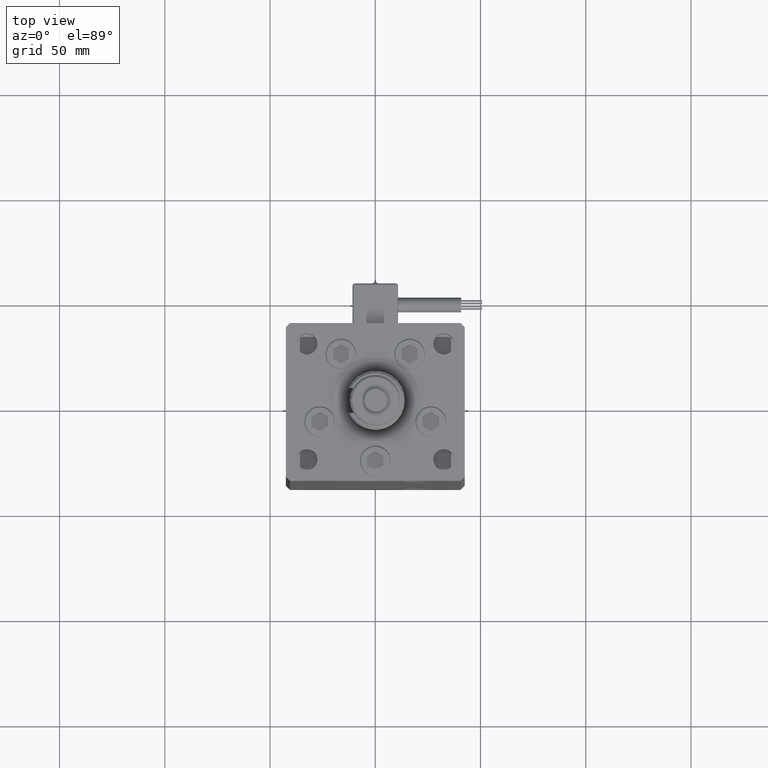
[diagram: clean part render]
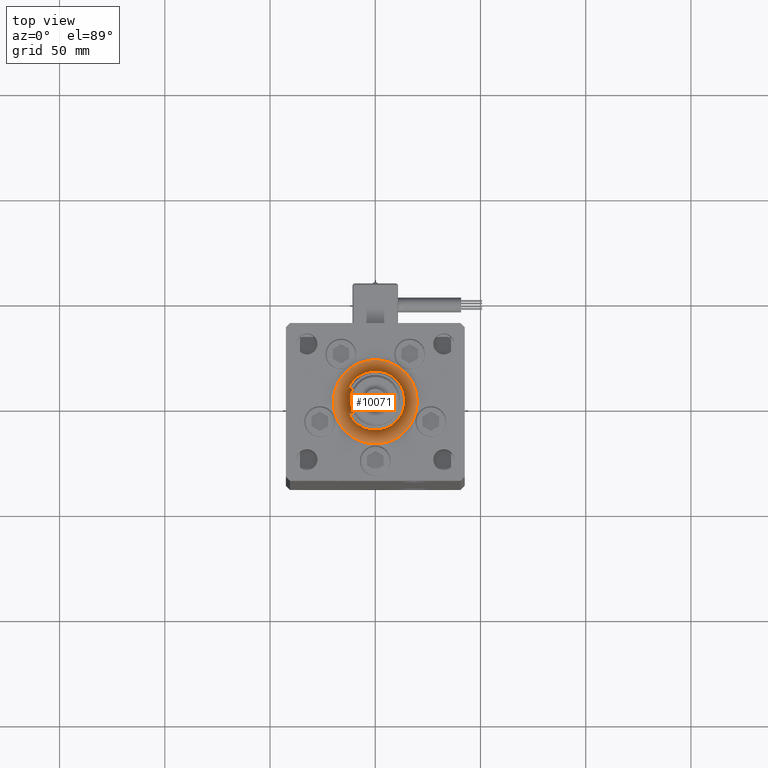
[diagram: same view with one face highlighted and labeled with its STEP entity id]
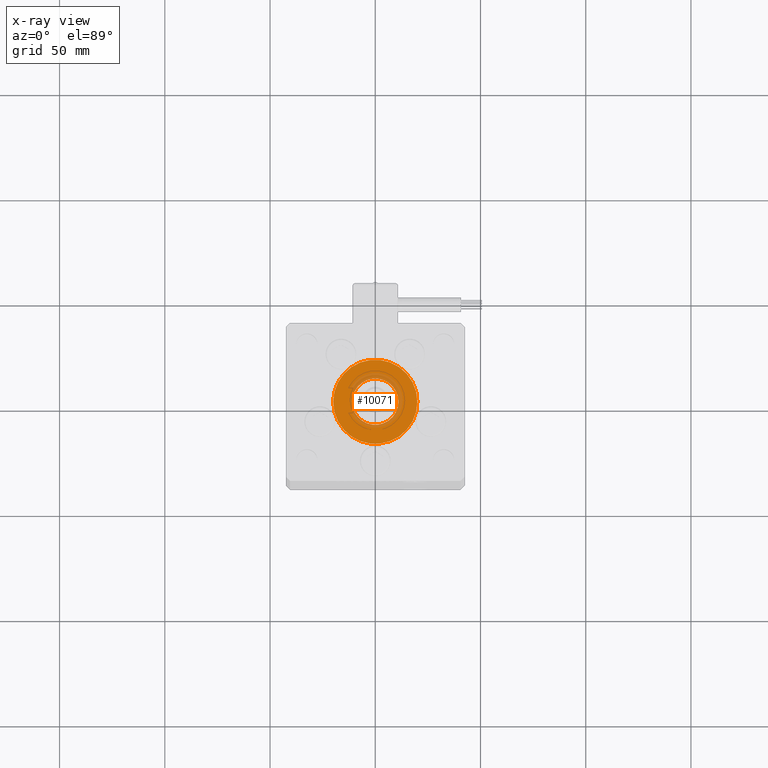
[diagram: x-ray of the same camera — body ghosted, the highlighted face saturated]
A machine part, top view. The second image highlights one B-rep face of the part: STEP entity #10071.
The next image is the same camera in x-ray: the body ghosted, the highlighted face saturated — about 16% of this face is hidden behind the body in this view.
In plain terms, the highlighted planar face has unit normal (0, 0, 1).
Its self-contained STEP definition (entity closure, byte-faithful):
#358 = AXIS2_PLACEMENT_3D ( 'NONE', #39319, #52818, #12643 ) ;
#3642 = DIRECTION ( 'NONE',  ( 1.000000000000000000, 0.000000000000000000, -0.000000000000000000 ) ) ;
#5852 = EDGE_CURVE ( 'NONE', #21048, #15588, #49349, .T. ) ;
#5925 = CARTESIAN_POINT ( 'NONE',  ( 0.000000000000000000, -6.938893903907228378E-15, 2.000000000000000000 ) ) ;
#6199 = VERTEX_POINT ( 'NONE', #38442 ) ;
#7219 = EDGE_LOOP ( 'NONE', ( #24234, #39523 ) ) ;
#10071 = ADVANCED_FACE ( 'NONE', ( #15987, #52059 ), #11877, .T. ) ;
#11589 = DIRECTION ( 'NONE',  ( 0.000000000000000000, 0.000000000000000000, 1.000000000000000000 ) ) ;
#11877 = PLANE ( 'NONE',  #17531 ) ;
#12457 = ORIENTED_EDGE ( 'NONE', *, *, #34914, .T. ) ;
#12643 = DIRECTION ( 'NONE',  ( 1.000000000000000000, 0.000000000000000000, 0.000000000000000000 ) ) ;
#15588 = VERTEX_POINT ( 'NONE', #29281 ) ;
#15628 = AXIS2_PLACEMENT_3D ( 'NONE', #44338, #55886, #30069 ) ;
#15861 = DIRECTION ( 'NONE',  ( 1.000000000000000000, 0.000000000000000000, 0.000000000000000000 ) ) ;
#15987 = FACE_BOUND ( 'NONE', #7219, .T. ) ;
#17531 = AXIS2_PLACEMENT_3D ( 'NONE', #51770, #11589, #3642 ) ;
#18992 = EDGE_CURVE ( 'NONE', #6199, #54230, #34683, .T. ) ;
#21048 = VERTEX_POINT ( 'NONE', #29440 ) ;
#24234 = ORIENTED_EDGE ( 'NONE', *, *, #38330, .F. ) ;
#24370 = DIRECTION ( 'NONE',  ( 0.000000000000000000, 0.000000000000000000, 1.000000000000000000 ) ) ;
#25229 = CARTESIAN_POINT ( 'NONE',  ( 0.000000000000000000, -6.938893903907228378E-15, 2.000000000000000000 ) ) ;
#28145 = AXIS2_PLACEMENT_3D ( 'NONE', #5925, #24370, #15861 ) ;
#29281 = CARTESIAN_POINT ( 'NONE',  ( 11.00000000000000000, -6.938893903907228378E-15, 2.000000000000000000 ) ) ;
#29440 = CARTESIAN_POINT ( 'NONE',  ( -11.00000000000000000, -5.591782424845139381E-15, 2.000000000000000000 ) ) ;
#29552 = CIRCLE ( 'NONE', #47337, 11.00000000000000000 ) ;
#30069 = DIRECTION ( 'NONE',  ( 1.000000000000000000, 0.000000000000000000, 0.000000000000000000 ) ) ;
#30332 = CIRCLE ( 'NONE', #358, 20.00000000000000000 ) ;
#34683 = CIRCLE ( 'NONE', #28145, 20.00000000000000000 ) ;
#34914 = EDGE_CURVE ( 'NONE', #54230, #6199, #30332, .T. ) ;
#38330 = EDGE_CURVE ( 'NONE', #15588, #21048, #29552, .T. ) ;
#38442 = CARTESIAN_POINT ( 'NONE',  ( 20.00000000000000000, -4.489600305612522259E-15, 2.000000000000000000 ) ) ;
#39319 = CARTESIAN_POINT ( 'NONE',  ( 0.000000000000000000, -6.938893903907228378E-15, 2.000000000000000000 ) ) ;
#39523 = ORIENTED_EDGE ( 'NONE', *, *, #5852, .F. ) ;
#41814 = EDGE_LOOP ( 'NONE', ( #12457, #50679 ) ) ;
#44338 = CARTESIAN_POINT ( 'NONE',  ( 0.000000000000000000, -6.938893903907228378E-15, 2.000000000000000000 ) ) ;
#47337 = AXIS2_PLACEMENT_3D ( 'NONE', #25229, #57470, #57757 ) ;
#49349 = CIRCLE ( 'NONE', #15628, 11.00000000000000000 ) ;
#50679 = ORIENTED_EDGE ( 'NONE', *, *, #18992, .T. ) ;
#51770 = CARTESIAN_POINT ( 'NONE',  ( 0.000000000000000000, -6.938893903907228378E-15, 2.000000000000000000 ) ) ;
#52059 = FACE_OUTER_BOUND ( 'NONE', #41814, .T. ) ;
#52818 = DIRECTION ( 'NONE',  ( 0.000000000000000000, 0.000000000000000000, 1.000000000000000000 ) ) ;
#54230 = VERTEX_POINT ( 'NONE', #57052 ) ;
#55886 = DIRECTION ( 'NONE',  ( 0.000000000000000000, 0.000000000000000000, 1.000000000000000000 ) ) ;
#57052 = CARTESIAN_POINT ( 'NONE',  ( -20.00000000000000000, -6.938893903907228378E-15, 2.000000000000000000 ) ) ;
#57470 = DIRECTION ( 'NONE',  ( 0.000000000000000000, 0.000000000000000000, 1.000000000000000000 ) ) ;
#57757 = DIRECTION ( 'NONE',  ( 1.000000000000000000, 0.000000000000000000, 0.000000000000000000 ) ) ;